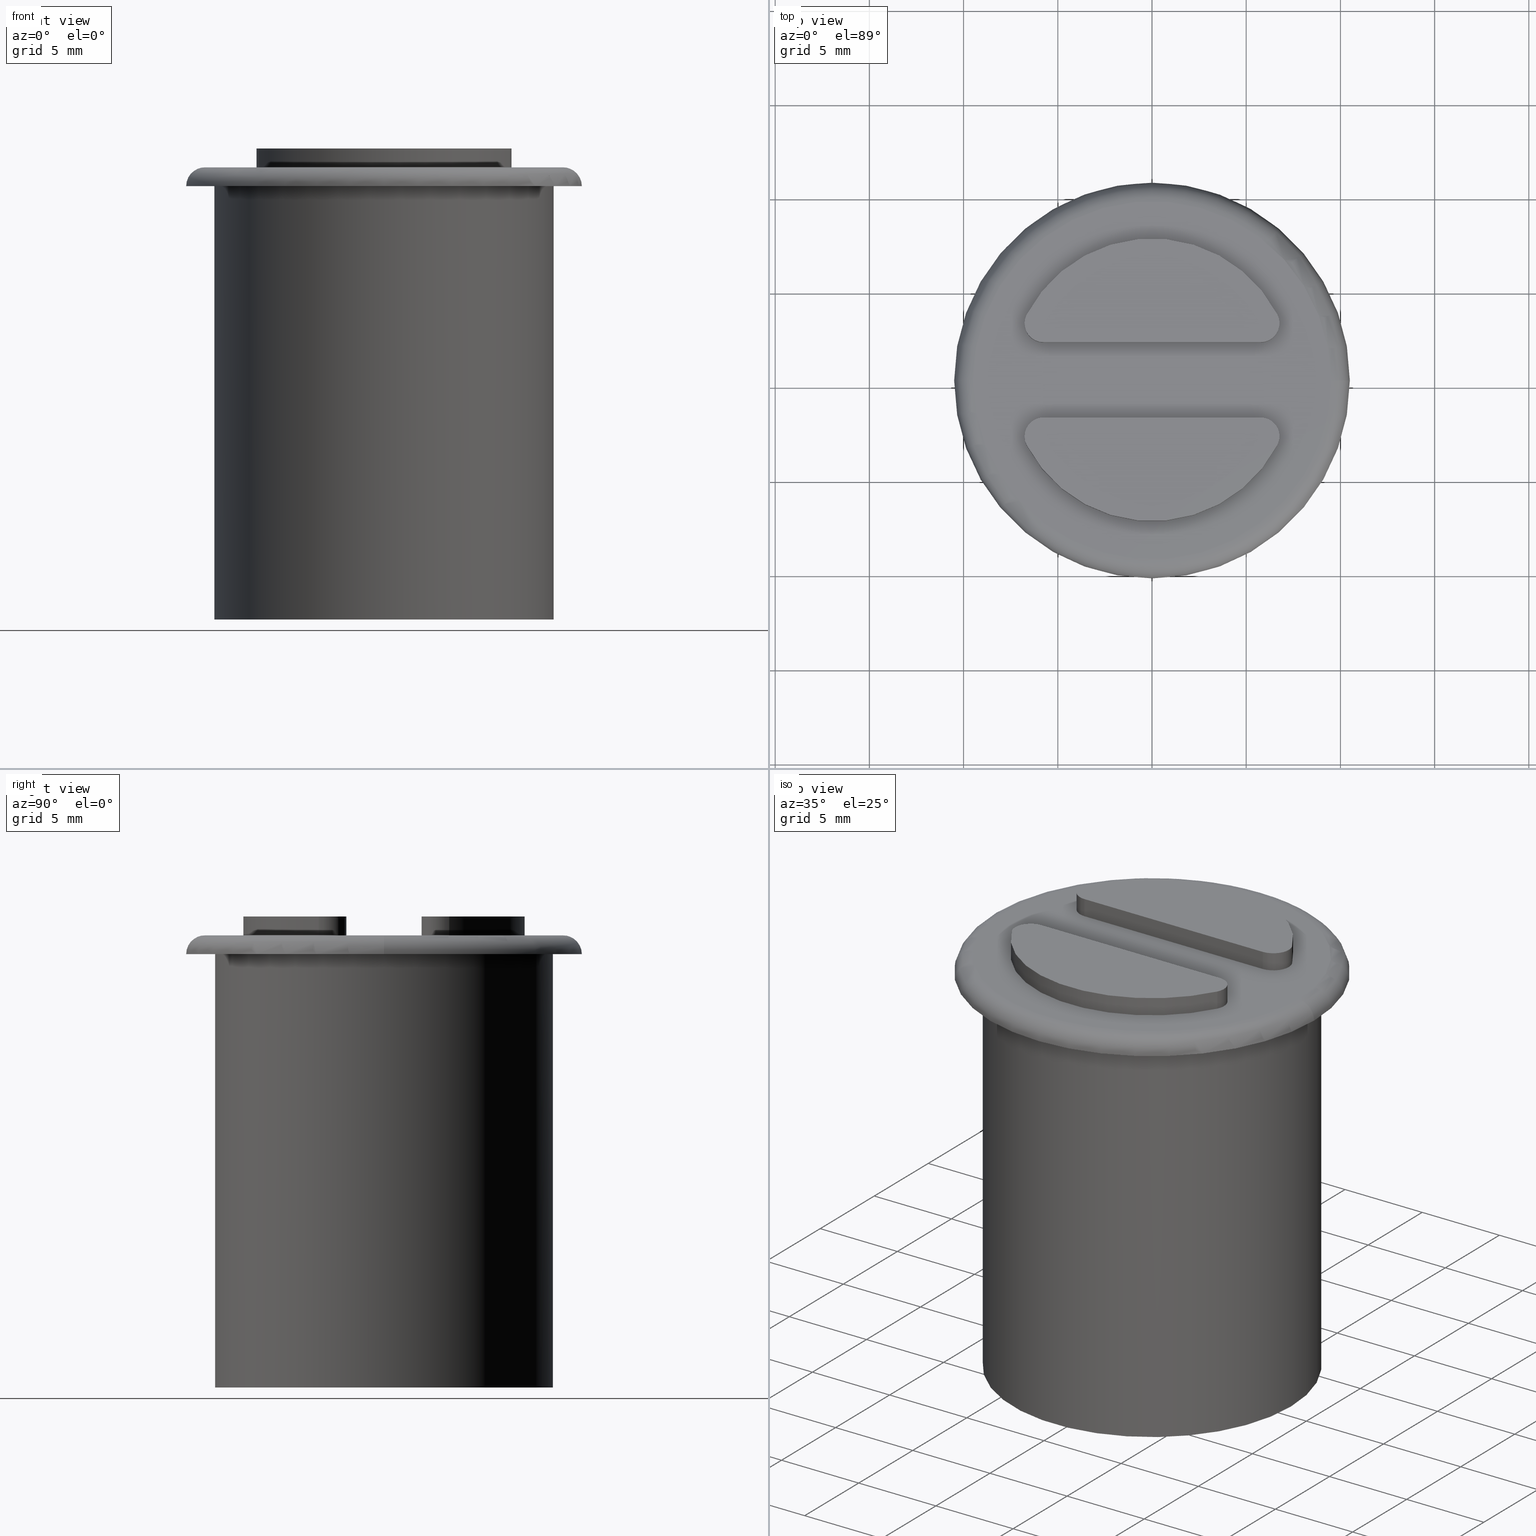
[diagram: canonical four-view strip — front | top / right | iso, engineering-drawing reading convention]
A machine part, canonical four-view strip (front | top / right | iso — engineering-drawing reading convention). The complete STEP part file that produces these views, byte-faithful:
ISO-10303-21;
HEADER;
/* Generated by software containing ST-Developer
 * from STEP Tools, Inc. (www.steptools.com) 
 */

FILE_DESCRIPTION(
/* description */ ('MAGNETE RLC18 S/RISC.'),
/* implementation_level */ '2;1');

FILE_NAME(
/* name */ 
'Q:\\Catalogo\\2_Accessori Dierre\\Per Download Web e catalogo cartace
o\\CATALOGO ACCESSORI PER RIPARI\\PAGINA 70\\CMGPE0000011.stp',
/* time_stamp */ '2018-11-07T12:02:06+01:00',
/* author */ ('fzagni'),
/* organization */ (''),
/* preprocessor_version */ 'ST-DEVELOPER v16.1',
/* originating_system */ 'Autodesk Inventor 2016',
/* authorisation */ '');

FILE_SCHEMA (('AUTOMOTIVE_DESIGN { 1 0 10303 214 3 1 1 }'));
ENDSEC;

DATA;
#10=MECHANICAL_DESIGN_GEOMETRIC_PRESENTATION_REPRESENTATION('',(#213,#216,
#214,#215,#223,#222,#220,#224,#218,#219,#221,#225,#217,#226,#228,#227),
#420);
#11=SHAPE_REPRESENTATION_RELATIONSHIP('SRR','None',#429,#12);
#12=ADVANCED_BREP_SHAPE_REPRESENTATION('',(#13),#419);
#13=MANIFOLD_SOLID_BREP('Solido1',#244);
#14=TOROIDAL_SURFACE('',#270,9.5,1.);
#15=FACE_BOUND('',#51,.T.);
#16=FACE_BOUND('',#52,.T.);
#17=FACE_BOUND('',#56,.T.);
#18=FACE_BOUND('',#58,.T.);
#19=FACE_BOUND('',#60,.T.);
#20=PLANE('',#249);
#21=PLANE('',#250);
#22=PLANE('',#258);
#23=PLANE('',#265);
#24=PLANE('',#268);
#25=PLANE('',#275);
#26=PLANE('',#276);
#27=FACE_OUTER_BOUND('',#42,.T.);
#28=FACE_OUTER_BOUND('',#43,.T.);
#29=FACE_OUTER_BOUND('',#44,.T.);
#30=FACE_OUTER_BOUND('',#45,.T.);
#31=FACE_OUTER_BOUND('',#46,.T.);
#32=FACE_OUTER_BOUND('',#47,.T.);
#33=FACE_OUTER_BOUND('',#48,.T.);
#34=FACE_OUTER_BOUND('',#49,.T.);
#35=FACE_OUTER_BOUND('',#50,.T.);
#36=FACE_OUTER_BOUND('',#53,.T.);
#37=FACE_OUTER_BOUND('',#54,.T.);
#38=FACE_OUTER_BOUND('',#55,.T.);
#39=FACE_OUTER_BOUND('',#57,.T.);
#40=FACE_OUTER_BOUND('',#59,.T.);
#41=FACE_OUTER_BOUND('',#61,.T.);
#42=EDGE_LOOP('',(#150,#151,#152,#153));
#43=EDGE_LOOP('',(#154,#155,#156,#157));
#44=EDGE_LOOP('',(#158,#159,#160,#161));
#45=EDGE_LOOP('',(#162,#163,#164,#165));
#46=EDGE_LOOP('',(#166,#167,#168,#169));
#47=EDGE_LOOP('',(#170,#171,#172,#173));
#48=EDGE_LOOP('',(#174,#175,#176,#177));
#49=EDGE_LOOP('',(#178,#179,#180,#181));
#50=EDGE_LOOP('',(#182));
#51=EDGE_LOOP('',(#183,#184,#185,#186));
#52=EDGE_LOOP('',(#187,#188,#189,#190));
#53=EDGE_LOOP('',(#191,#192,#193,#194));
#54=EDGE_LOOP('',(#195,#196,#197,#198));
#55=EDGE_LOOP('',(#199));
#56=EDGE_LOOP('',(#200));
#57=EDGE_LOOP('',(#201));
#58=EDGE_LOOP('',(#202));
#59=EDGE_LOOP('',(#203));
#60=EDGE_LOOP('',(#204));
#61=EDGE_LOOP('',(#205));
#62=LINE('',#359,#74);
#63=LINE('',#362,#75);
#64=LINE('',#365,#76);
#65=LINE('',#367,#77);
#66=LINE('',#368,#78);
#67=LINE('',#375,#79);
#68=LINE('',#382,#80);
#69=LINE('',#385,#81);
#70=LINE('',#388,#82);
#71=LINE('',#390,#83);
#72=LINE('',#391,#84);
#73=LINE('',#397,#85);
#74=VECTOR('',#283,1.);
#75=VECTOR('',#286,0.999999999999996);
#76=VECTOR('',#289,11.5325625946708);
#77=VECTOR('',#290,1.);
#78=VECTOR('',#291,11.5325625946708);
#79=VECTOR('',#300,0.999999999999996);
#80=VECTOR('',#307,0.999999999999996);
#81=VECTOR('',#310,1.);
#82=VECTOR('',#313,11.5325625946708);
#83=VECTOR('',#314,1.);
#84=VECTOR('',#315,11.5325625946708);
#85=VECTOR('',#322,0.999999999999996);
#86=CIRCLE('',#247,1.);
#87=CIRCLE('',#248,1.);
#88=CIRCLE('',#251,7.5);
#89=CIRCLE('',#252,1.);
#90=CIRCLE('',#254,1.);
#91=CIRCLE('',#256,1.);
#92=CIRCLE('',#257,1.);
#93=CIRCLE('',#260,1.);
#94=CIRCLE('',#261,1.);
#95=CIRCLE('',#263,7.5);
#96=CIRCLE('',#264,7.5);
#97=CIRCLE('',#266,9.5);
#98=CIRCLE('',#267,7.5);
#99=CIRCLE('',#271,10.5);
#100=CIRCLE('',#273,9.);
#101=CIRCLE('',#274,9.);
#102=VERTEX_POINT('',#355);
#103=VERTEX_POINT('',#356);
#104=VERTEX_POINT('',#358);
#105=VERTEX_POINT('',#360);
#106=VERTEX_POINT('',#364);
#107=VERTEX_POINT('',#366);
#108=VERTEX_POINT('',#370);
#109=VERTEX_POINT('',#374);
#110=VERTEX_POINT('',#378);
#111=VERTEX_POINT('',#379);
#112=VERTEX_POINT('',#381);
#113=VERTEX_POINT('',#383);
#114=VERTEX_POINT('',#387);
#115=VERTEX_POINT('',#389);
#116=VERTEX_POINT('',#393);
#117=VERTEX_POINT('',#395);
#118=VERTEX_POINT('',#402);
#119=VERTEX_POINT('',#408);
#120=VERTEX_POINT('',#411);
#121=VERTEX_POINT('',#413);
#122=EDGE_CURVE('',#102,#103,#86,.T.);
#123=EDGE_CURVE('',#103,#104,#62,.T.);
#124=EDGE_CURVE('',#104,#105,#87,.F.);
#125=EDGE_CURVE('',#105,#102,#63,.T.);
#126=EDGE_CURVE('',#106,#103,#64,.T.);
#127=EDGE_CURVE('',#107,#106,#65,.T.);
#128=EDGE_CURVE('',#107,#104,#66,.T.);
#129=EDGE_CURVE('',#102,#108,#88,.T.);
#130=EDGE_CURVE('',#106,#108,#89,.T.);
#131=EDGE_CURVE('',#108,#109,#67,.T.);
#132=EDGE_CURVE('',#109,#107,#90,.F.);
#133=EDGE_CURVE('',#110,#111,#91,.T.);
#134=EDGE_CURVE('',#111,#112,#68,.T.);
#135=EDGE_CURVE('',#112,#113,#92,.F.);
#136=EDGE_CURVE('',#113,#110,#69,.T.);
#137=EDGE_CURVE('',#113,#114,#70,.T.);
#138=EDGE_CURVE('',#115,#114,#71,.T.);
#139=EDGE_CURVE('',#110,#115,#72,.T.);
#140=EDGE_CURVE('',#116,#115,#93,.T.);
#141=EDGE_CURVE('',#114,#117,#94,.F.);
#142=EDGE_CURVE('',#117,#116,#73,.T.);
#143=EDGE_CURVE('',#116,#111,#95,.T.);
#144=EDGE_CURVE('',#112,#117,#96,.T.);
#145=EDGE_CURVE('',#118,#118,#97,.T.);
#146=EDGE_CURVE('',#109,#105,#98,.T.);
#147=EDGE_CURVE('',#119,#119,#99,.T.);
#148=EDGE_CURVE('',#120,#120,#100,.T.);
#149=EDGE_CURVE('',#121,#121,#101,.T.);
#150=ORIENTED_EDGE('',*,*,#122,.T.);
#151=ORIENTED_EDGE('',*,*,#123,.T.);
#152=ORIENTED_EDGE('',*,*,#124,.T.);
#153=ORIENTED_EDGE('',*,*,#125,.T.);
#154=ORIENTED_EDGE('',*,*,#123,.F.);
#155=ORIENTED_EDGE('',*,*,#126,.F.);
#156=ORIENTED_EDGE('',*,*,#127,.F.);
#157=ORIENTED_EDGE('',*,*,#128,.T.);
#158=ORIENTED_EDGE('',*,*,#122,.F.);
#159=ORIENTED_EDGE('',*,*,#129,.T.);
#160=ORIENTED_EDGE('',*,*,#130,.F.);
#161=ORIENTED_EDGE('',*,*,#126,.T.);
#162=ORIENTED_EDGE('',*,*,#130,.T.);
#163=ORIENTED_EDGE('',*,*,#131,.T.);
#164=ORIENTED_EDGE('',*,*,#132,.T.);
#165=ORIENTED_EDGE('',*,*,#127,.T.);
#166=ORIENTED_EDGE('',*,*,#133,.T.);
#167=ORIENTED_EDGE('',*,*,#134,.T.);
#168=ORIENTED_EDGE('',*,*,#135,.T.);
#169=ORIENTED_EDGE('',*,*,#136,.T.);
#170=ORIENTED_EDGE('',*,*,#136,.F.);
#171=ORIENTED_EDGE('',*,*,#137,.T.);
#172=ORIENTED_EDGE('',*,*,#138,.F.);
#173=ORIENTED_EDGE('',*,*,#139,.F.);
#174=ORIENTED_EDGE('',*,*,#140,.T.);
#175=ORIENTED_EDGE('',*,*,#138,.T.);
#176=ORIENTED_EDGE('',*,*,#141,.T.);
#177=ORIENTED_EDGE('',*,*,#142,.T.);
#178=ORIENTED_EDGE('',*,*,#134,.F.);
#179=ORIENTED_EDGE('',*,*,#143,.F.);
#180=ORIENTED_EDGE('',*,*,#142,.F.);
#181=ORIENTED_EDGE('',*,*,#144,.F.);
#182=ORIENTED_EDGE('',*,*,#145,.F.);
#183=ORIENTED_EDGE('',*,*,#144,.T.);
#184=ORIENTED_EDGE('',*,*,#141,.F.);
#185=ORIENTED_EDGE('',*,*,#137,.F.);
#186=ORIENTED_EDGE('',*,*,#135,.F.);
#187=ORIENTED_EDGE('',*,*,#146,.T.);
#188=ORIENTED_EDGE('',*,*,#124,.F.);
#189=ORIENTED_EDGE('',*,*,#128,.F.);
#190=ORIENTED_EDGE('',*,*,#132,.F.);
#191=ORIENTED_EDGE('',*,*,#133,.F.);
#192=ORIENTED_EDGE('',*,*,#139,.T.);
#193=ORIENTED_EDGE('',*,*,#140,.F.);
#194=ORIENTED_EDGE('',*,*,#143,.T.);
#195=ORIENTED_EDGE('',*,*,#125,.F.);
#196=ORIENTED_EDGE('',*,*,#146,.F.);
#197=ORIENTED_EDGE('',*,*,#131,.F.);
#198=ORIENTED_EDGE('',*,*,#129,.F.);
#199=ORIENTED_EDGE('',*,*,#147,.T.);
#200=ORIENTED_EDGE('',*,*,#145,.T.);
#201=ORIENTED_EDGE('',*,*,#148,.T.);
#202=ORIENTED_EDGE('',*,*,#149,.F.);
#203=ORIENTED_EDGE('',*,*,#147,.F.);
#204=ORIENTED_EDGE('',*,*,#148,.F.);
#205=ORIENTED_EDGE('',*,*,#149,.T.);
#206=CYLINDRICAL_SURFACE('',#246,1.);
#207=CYLINDRICAL_SURFACE('',#253,1.);
#208=CYLINDRICAL_SURFACE('',#255,1.);
#209=CYLINDRICAL_SURFACE('',#259,1.);
#210=CYLINDRICAL_SURFACE('',#262,7.5);
#211=CYLINDRICAL_SURFACE('',#269,7.5);
#212=CYLINDRICAL_SURFACE('',#272,9.);
#213=STYLED_ITEM('',(#439),#229);
#214=STYLED_ITEM('',(#439),#230);
#215=STYLED_ITEM('',(#439),#231);
#216=STYLED_ITEM('',(#439),#232);
#217=STYLED_ITEM('',(#439),#233);
#218=STYLED_ITEM('',(#439),#234);
#219=STYLED_ITEM('',(#439),#235);
#220=STYLED_ITEM('',(#439),#236);
#221=STYLED_ITEM('',(#440),#237);
#222=STYLED_ITEM('',(#439),#238);
#223=STYLED_ITEM('',(#439),#239);
#224=STYLED_ITEM('',(#440),#240);
#225=STYLED_ITEM('',(#440),#241);
#226=STYLED_ITEM('',(#440),#242);
#227=STYLED_ITEM('',(#440),#243);
#228=STYLED_ITEM('',(#438),#13);
#229=ADVANCED_FACE('',(#27),#206,.T.);
#230=ADVANCED_FACE('',(#28),#20,.F.);
#231=ADVANCED_FACE('',(#29),#21,.T.);
#232=ADVANCED_FACE('',(#30),#207,.T.);
#233=ADVANCED_FACE('',(#31),#208,.T.);
#234=ADVANCED_FACE('',(#32),#22,.F.);
#235=ADVANCED_FACE('',(#33),#209,.T.);
#236=ADVANCED_FACE('',(#34),#210,.T.);
#237=ADVANCED_FACE('',(#35,#15,#16),#23,.T.);
#238=ADVANCED_FACE('',(#36),#24,.T.);
#239=ADVANCED_FACE('',(#37),#211,.T.);
#240=ADVANCED_FACE('',(#38,#17),#14,.T.);
#241=ADVANCED_FACE('',(#39,#18),#212,.T.);
#242=ADVANCED_FACE('',(#40,#19),#25,.F.);
#243=ADVANCED_FACE('',(#41),#26,.F.);
#244=CLOSED_SHELL('',(#229,#230,#231,#232,#233,#234,#235,#236,#237,#238,
#239,#240,#241,#242,#243));
#245=AXIS2_PLACEMENT_3D('placement',#353,#277,#278);
#246=AXIS2_PLACEMENT_3D('',#354,#279,#280);
#247=AXIS2_PLACEMENT_3D('',#357,#281,#282);
#248=AXIS2_PLACEMENT_3D('',#361,#284,#285);
#249=AXIS2_PLACEMENT_3D('',#363,#287,#288);
#250=AXIS2_PLACEMENT_3D('',#369,#292,#293);
#251=AXIS2_PLACEMENT_3D('',#371,#294,#295);
#252=AXIS2_PLACEMENT_3D('',#372,#296,#297);
#253=AXIS2_PLACEMENT_3D('',#373,#298,#299);
#254=AXIS2_PLACEMENT_3D('',#376,#301,#302);
#255=AXIS2_PLACEMENT_3D('',#377,#303,#304);
#256=AXIS2_PLACEMENT_3D('',#380,#305,#306);
#257=AXIS2_PLACEMENT_3D('',#384,#308,#309);
#258=AXIS2_PLACEMENT_3D('',#386,#311,#312);
#259=AXIS2_PLACEMENT_3D('',#392,#316,#317);
#260=AXIS2_PLACEMENT_3D('',#394,#318,#319);
#261=AXIS2_PLACEMENT_3D('',#396,#320,#321);
#262=AXIS2_PLACEMENT_3D('',#398,#323,#324);
#263=AXIS2_PLACEMENT_3D('',#399,#325,#326);
#264=AXIS2_PLACEMENT_3D('',#400,#327,#328);
#265=AXIS2_PLACEMENT_3D('',#401,#329,#330);
#266=AXIS2_PLACEMENT_3D('',#403,#331,#332);
#267=AXIS2_PLACEMENT_3D('',#404,#333,#334);
#268=AXIS2_PLACEMENT_3D('',#405,#335,#336);
#269=AXIS2_PLACEMENT_3D('',#406,#337,#338);
#270=AXIS2_PLACEMENT_3D('',#407,#339,#340);
#271=AXIS2_PLACEMENT_3D('',#409,#341,#342);
#272=AXIS2_PLACEMENT_3D('',#410,#343,#344);
#273=AXIS2_PLACEMENT_3D('',#412,#345,#346);
#274=AXIS2_PLACEMENT_3D('',#414,#347,#348);
#275=AXIS2_PLACEMENT_3D('',#415,#349,#350);
#276=AXIS2_PLACEMENT_3D('',#416,#351,#352);
#277=DIRECTION('axis',(0.,0.,1.));
#278=DIRECTION('refdir',(1.,0.,0.));
#279=DIRECTION('center_axis',(0.,0.,-1.));
#280=DIRECTION('ref_axis',(-0.85485041426511,0.518874521662771,0.));
#281=DIRECTION('center_axis',(0.,0.,-1.));
#282=DIRECTION('ref_axis',(-0.85485041426511,0.518874521662771,0.));
#283=DIRECTION('',(0.,0.,-1.));
#284=DIRECTION('center_axis',(0.,0.,-1.));
#285=DIRECTION('ref_axis',(-0.85485041426511,0.518874521662771,0.));
#286=DIRECTION('',(0.,0.,1.));
#287=DIRECTION('center_axis',(1.21430643318377E-16,-1.,0.));
#288=DIRECTION('ref_axis',(-1.,-1.11022302462516E-16,0.));
#289=DIRECTION('',(-1.,-1.21430643318377E-16,0.));
#290=DIRECTION('',(0.,0.,1.));
#291=DIRECTION('',(-1.,-1.21430643318377E-16,0.));
#292=DIRECTION('center_axis',(0.,0.,1.));
#293=DIRECTION('ref_axis',(1.,0.,0.));
#294=DIRECTION('center_axis',(0.,0.,1.));
#295=DIRECTION('ref_axis',(-1.,0.,0.));
#296=DIRECTION('center_axis',(0.,0.,-1.));
#297=DIRECTION('ref_axis',(0.854850414265111,0.51887452166277,0.));
#298=DIRECTION('center_axis',(0.,0.,1.));
#299=DIRECTION('ref_axis',(0.854850414265111,0.51887452166277,0.));
#300=DIRECTION('',(0.,0.,-1.));
#301=DIRECTION('center_axis',(0.,0.,-1.));
#302=DIRECTION('ref_axis',(0.854850414265111,0.51887452166277,0.));
#303=DIRECTION('center_axis',(0.,0.,1.));
#304=DIRECTION('ref_axis',(-0.85485041426511,-0.518874521662771,0.));
#305=DIRECTION('center_axis',(0.,0.,-1.));
#306=DIRECTION('ref_axis',(-0.85485041426511,-0.518874521662771,0.));
#307=DIRECTION('',(0.,0.,-1.));
#308=DIRECTION('center_axis',(0.,0.,-1.));
#309=DIRECTION('ref_axis',(-0.85485041426511,-0.518874521662771,0.));
#310=DIRECTION('',(0.,0.,1.));
#311=DIRECTION('center_axis',(0.,1.,0.));
#312=DIRECTION('ref_axis',(1.,0.,0.));
#313=DIRECTION('',(1.,0.,0.));
#314=DIRECTION('',(0.,0.,-1.));
#315=DIRECTION('',(1.,0.,0.));
#316=DIRECTION('center_axis',(0.,0.,-1.));
#317=DIRECTION('ref_axis',(0.85485041426511,-0.518874521662772,0.));
#318=DIRECTION('center_axis',(0.,0.,-1.));
#319=DIRECTION('ref_axis',(0.85485041426511,-0.518874521662772,0.));
#320=DIRECTION('center_axis',(0.,0.,-1.));
#321=DIRECTION('ref_axis',(0.85485041426511,-0.518874521662772,0.));
#322=DIRECTION('',(0.,0.,1.));
#323=DIRECTION('center_axis',(0.,0.,1.));
#324=DIRECTION('ref_axis',(-1.,0.,0.));
#325=DIRECTION('center_axis',(0.,0.,1.));
#326=DIRECTION('ref_axis',(-1.,0.,0.));
#327=DIRECTION('center_axis',(0.,0.,-1.));
#328=DIRECTION('ref_axis',(-1.,0.,0.));
#329=DIRECTION('center_axis',(0.,0.,1.));
#330=DIRECTION('ref_axis',(1.,0.,0.));
#331=DIRECTION('center_axis',(0.,0.,-1.));
#332=DIRECTION('ref_axis',(-1.,0.,0.));
#333=DIRECTION('center_axis',(0.,0.,-1.));
#334=DIRECTION('ref_axis',(-1.,0.,0.));
#335=DIRECTION('center_axis',(0.,0.,1.));
#336=DIRECTION('ref_axis',(1.,0.,0.));
#337=DIRECTION('center_axis',(0.,0.,1.));
#338=DIRECTION('ref_axis',(-1.,0.,0.));
#339=DIRECTION('center_axis',(0.,0.,1.));
#340=DIRECTION('ref_axis',(1.,0.,0.));
#341=DIRECTION('center_axis',(0.,0.,1.));
#342=DIRECTION('ref_axis',(-1.,0.,0.));
#343=DIRECTION('center_axis',(0.,0.,1.));
#344=DIRECTION('ref_axis',(1.,0.,0.));
#345=DIRECTION('center_axis',(0.,0.,-1.));
#346=DIRECTION('ref_axis',(1.,0.,0.));
#347=DIRECTION('center_axis',(0.,0.,-1.));
#348=DIRECTION('ref_axis',(1.,0.,0.));
#349=DIRECTION('center_axis',(0.,0.,1.));
#350=DIRECTION('ref_axis',(1.,0.,0.));
#351=DIRECTION('center_axis',(0.,0.,1.));
#352=DIRECTION('ref_axis',(1.,0.,0.));
#353=CARTESIAN_POINT('',(0.,0.,0.));
#354=CARTESIAN_POINT('Origin',(-5.7662812973354,-3.,24.));
#355=CARTESIAN_POINT('',(-6.65340149692546,-3.46153846153846,25.));
#356=CARTESIAN_POINT('',(-5.7662812973354,-2.,25.));
#357=CARTESIAN_POINT('Origin',(-5.7662812973354,-3.,25.));
#358=CARTESIAN_POINT('',(-5.7662812973354,-2.,24.));
#359=CARTESIAN_POINT('',(-5.7662812973354,-2.,24.));
#360=CARTESIAN_POINT('',(-6.65340149692546,-3.46153846153846,24.));
#361=CARTESIAN_POINT('Origin',(-5.7662812973354,-3.,24.));
#362=CARTESIAN_POINT('',(-6.65340149692546,-3.46153846153846,24.));
#363=CARTESIAN_POINT('Origin',(8.,-2.,25.));
#364=CARTESIAN_POINT('',(5.7662812973354,-2.,25.));
#365=CARTESIAN_POINT('',(4.,-2.,25.));
#366=CARTESIAN_POINT('',(5.7662812973354,-2.,24.));
#367=CARTESIAN_POINT('',(5.7662812973354,-2.,24.));
#368=CARTESIAN_POINT('',(8.,-2.,24.));
#369=CARTESIAN_POINT('Origin',(-3.23256652641189E-16,1.2335811384724E-16,
25.));
#370=CARTESIAN_POINT('',(6.65340149692546,-3.46153846153846,25.));
#371=CARTESIAN_POINT('Origin',(0.,0.,25.));
#372=CARTESIAN_POINT('Origin',(5.7662812973354,-3.,25.));
#373=CARTESIAN_POINT('Origin',(5.7662812973354,-3.,24.));
#374=CARTESIAN_POINT('',(6.65340149692546,-3.46153846153846,24.));
#375=CARTESIAN_POINT('',(6.65340149692546,-3.46153846153846,24.));
#376=CARTESIAN_POINT('Origin',(5.7662812973354,-3.,24.));
#377=CARTESIAN_POINT('Origin',(-5.7662812973354,3.,24.));
#378=CARTESIAN_POINT('',(-5.7662812973354,2.,25.));
#379=CARTESIAN_POINT('',(-6.65340149692546,3.46153846153846,25.));
#380=CARTESIAN_POINT('Origin',(-5.7662812973354,3.,25.));
#381=CARTESIAN_POINT('',(-6.65340149692546,3.46153846153846,24.));
#382=CARTESIAN_POINT('',(-6.65340149692546,3.46153846153846,24.));
#383=CARTESIAN_POINT('',(-5.7662812973354,2.,24.));
#384=CARTESIAN_POINT('Origin',(-5.7662812973354,3.,24.));
#385=CARTESIAN_POINT('',(-5.7662812973354,2.,24.));
#386=CARTESIAN_POINT('Origin',(-8.,2.,25.));
#387=CARTESIAN_POINT('',(5.7662812973354,2.,24.));
#388=CARTESIAN_POINT('',(-8.,2.,24.));
#389=CARTESIAN_POINT('',(5.7662812973354,2.,25.));
#390=CARTESIAN_POINT('',(5.7662812973354,2.,24.));
#391=CARTESIAN_POINT('',(-4.,2.,25.));
#392=CARTESIAN_POINT('Origin',(5.7662812973354,3.,24.));
#393=CARTESIAN_POINT('',(6.65340149692546,3.46153846153846,25.));
#394=CARTESIAN_POINT('Origin',(5.7662812973354,3.,25.));
#395=CARTESIAN_POINT('',(6.65340149692546,3.46153846153846,24.));
#396=CARTESIAN_POINT('Origin',(5.7662812973354,3.,24.));
#397=CARTESIAN_POINT('',(6.65340149692546,3.46153846153846,24.));
#398=CARTESIAN_POINT('Origin',(0.,0.,24.));
#399=CARTESIAN_POINT('Origin',(0.,0.,25.));
#400=CARTESIAN_POINT('Origin',(0.,0.,24.));
#401=CARTESIAN_POINT('Origin',(-4.5960834877465E-16,1.76225876924628E-16,
24.));
#402=CARTESIAN_POINT('',(9.5,-1.16341445918999E-15,24.));
#403=CARTESIAN_POINT('Origin',(0.,0.,24.));
#404=CARTESIAN_POINT('Origin',(0.,0.,24.));
#405=CARTESIAN_POINT('Origin',(-3.23256652641189E-16,1.2335811384724E-16,
25.));
#406=CARTESIAN_POINT('Origin',(0.,0.,24.));
#407=CARTESIAN_POINT('Origin',(0.,0.,23.));
#408=CARTESIAN_POINT('',(-10.5,1.28587913910472E-15,23.));
#409=CARTESIAN_POINT('Origin',(0.,0.,23.));
#410=CARTESIAN_POINT('Origin',(0.,0.,0.));
#411=CARTESIAN_POINT('',(-9.,1.10218211923262E-15,23.));
#412=CARTESIAN_POINT('Origin',(0.,0.,23.));
#413=CARTESIAN_POINT('',(-9.,1.10218211923262E-15,0.));
#414=CARTESIAN_POINT('Origin',(0.,0.,0.));
#415=CARTESIAN_POINT('Origin',(4.5960834877465E-16,1.76225876924628E-16,
23.));
#416=CARTESIAN_POINT('Origin',(-4.5960834877465E-16,1.76225876924628E-16,
0.));
#417=UNCERTAINTY_MEASURE_WITH_UNIT(LENGTH_MEASURE(0.01),#421,
'DISTANCE_ACCURACY_VALUE',
'Maximum model space distance between geometric entities at asserted c
onnectivities');
#418=UNCERTAINTY_MEASURE_WITH_UNIT(LENGTH_MEASURE(1.E-6),#421,
'DISTANCE_ACCURACY_VALUE',
'Maximum model space distance between geometric entities at asserted c
onnectivities');
#419=(
GEOMETRIC_REPRESENTATION_CONTEXT(3)
GLOBAL_UNCERTAINTY_ASSIGNED_CONTEXT((#417))
GLOBAL_UNIT_ASSIGNED_CONTEXT((#421,#424,#422))
REPRESENTATION_CONTEXT('','3D')
);
#420=(
GEOMETRIC_REPRESENTATION_CONTEXT(3)
GLOBAL_UNCERTAINTY_ASSIGNED_CONTEXT((#418))
GLOBAL_UNIT_ASSIGNED_CONTEXT((#421,#424,#422))
REPRESENTATION_CONTEXT('','3D')
);
#421=(
LENGTH_UNIT()
NAMED_UNIT(*)
SI_UNIT(.MILLI.,.METRE.)
);
#422=(
NAMED_UNIT(*)
SI_UNIT($,.STERADIAN.)
SOLID_ANGLE_UNIT()
);
#423=DIMENSIONAL_EXPONENTS(0.,0.,0.,0.,0.,0.,0.);
#424=(
CONVERSION_BASED_UNIT('degree',#426)
NAMED_UNIT(#423)
PLANE_ANGLE_UNIT()
);
#425=(
NAMED_UNIT(*)
PLANE_ANGLE_UNIT()
SI_UNIT($,.RADIAN.)
);
#426=PLANE_ANGLE_MEASURE_WITH_UNIT(PLANE_ANGLE_MEASURE(0.01745329252),#425);
#427=SHAPE_DEFINITION_REPRESENTATION(#428,#429);
#428=PRODUCT_DEFINITION_SHAPE('',$,#431);
#429=SHAPE_REPRESENTATION('',(#245),#419);
#430=PRODUCT_DEFINITION_CONTEXT('part definition',#435,'design');
#431=PRODUCT_DEFINITION('CMGPE0000011 (19.156.00 - XC50114)',
'CMGPE0000011 (19.156.00 - XC50114)',#432,#430);
#432=PRODUCT_DEFINITION_FORMATION('','B',#437);
#433=PRODUCT_RELATED_PRODUCT_CATEGORY(
'CMGPE0000011 (19.156.00 - XC50114)',
'CMGPE0000011 (19.156.00 - XC50114)',(#437));
#434=APPLICATION_PROTOCOL_DEFINITION('international standard',
'automotive_design',2009,#435);
#435=APPLICATION_CONTEXT(
'Core Data for Automotive Mechanical Design Process');
#436=PRODUCT_CONTEXT('part definition',#435,'mechanical');
#437=PRODUCT('CMGPE0000011 (19.156.00 - XC50114)',
'CMGPE0000011 (19.156.00 - XC50114)',$,(#436));
#438=PRESENTATION_STYLE_ASSIGNMENT((#441));
#439=PRESENTATION_STYLE_ASSIGNMENT((#442));
#440=PRESENTATION_STYLE_ASSIGNMENT((#443));
#441=SURFACE_STYLE_USAGE(.BOTH.,#444);
#442=SURFACE_STYLE_USAGE(.BOTH.,#445);
#443=SURFACE_STYLE_USAGE(.BOTH.,#446);
#444=SURFACE_SIDE_STYLE('',(#447));
#445=SURFACE_SIDE_STYLE('',(#448));
#446=SURFACE_SIDE_STYLE('',(#449));
#447=SURFACE_STYLE_FILL_AREA(#450);
#448=SURFACE_STYLE_FILL_AREA(#451);
#449=SURFACE_STYLE_FILL_AREA(#452);
#450=FILL_AREA_STYLE('',(#453));
#451=FILL_AREA_STYLE('',(#454));
#452=FILL_AREA_STYLE('',(#455));
#453=FILL_AREA_STYLE_COLOUR('',#456);
#454=FILL_AREA_STYLE_COLOUR('',#457);
#455=FILL_AREA_STYLE_COLOUR('',#458);
#456=COLOUR_RGB('',0.501960784313725,0.501960784313725,0.501960784313725);
#457=COLOUR_RGB('',0.752941176470588,0.752941176470588,0.752941176470588);
#458=COLOUR_RGB('',0.16078431372549,0.16078431372549,0.16078431372549);
ENDSEC;
END-ISO-10303-21;
